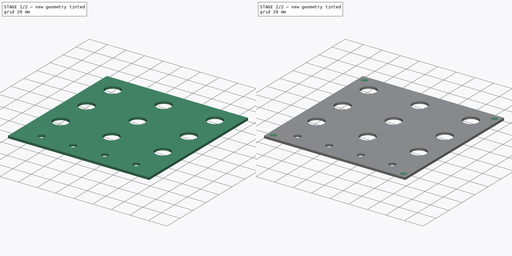
[diagram: build sequence overview — one tinted view per stage of 2, left to right]
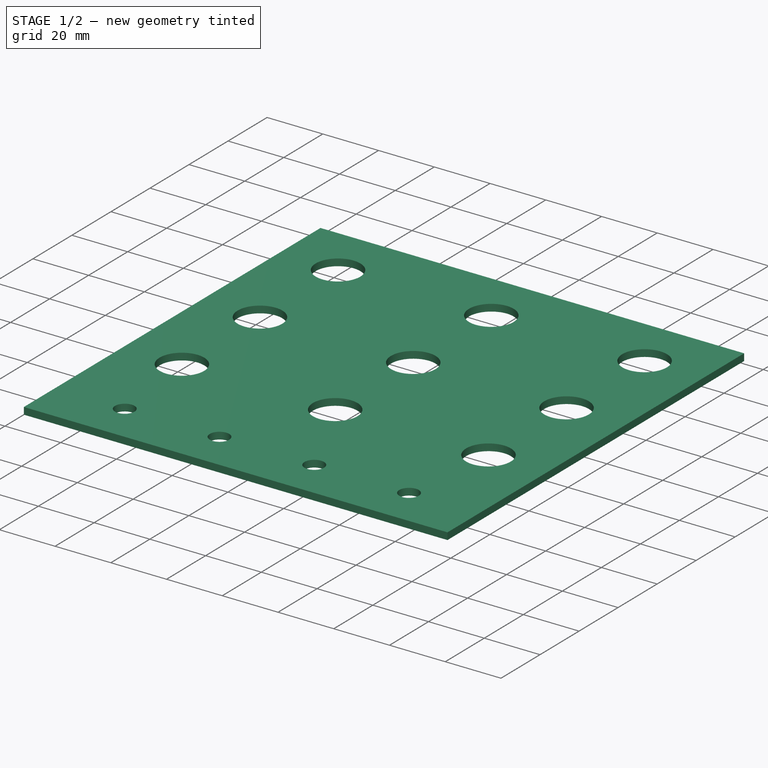
[diagram: stage 1 of 2 — iso view after this stage's code; geometry added in this stage tinted green]
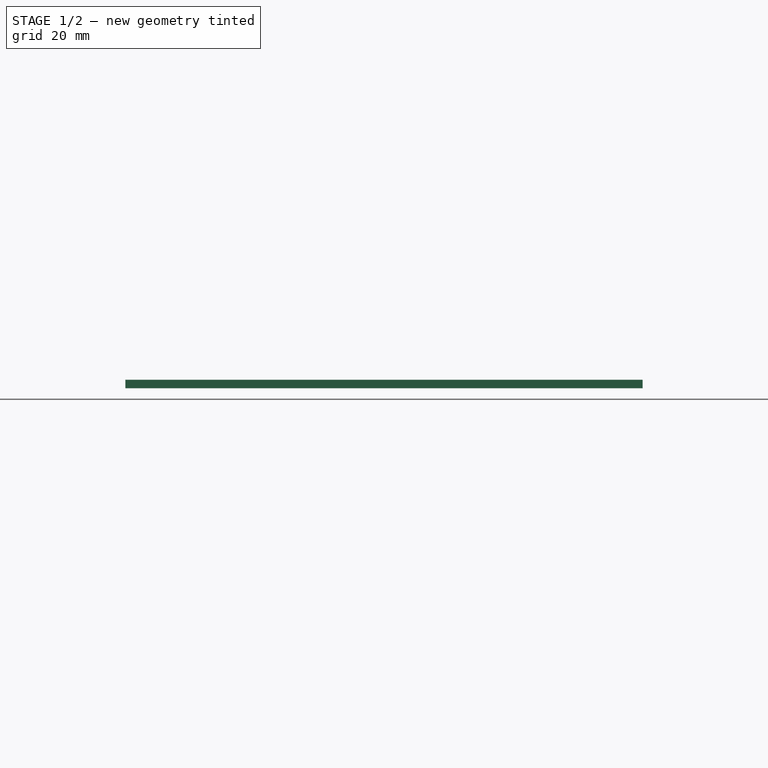
[diagram: stage 1 of 2 — front view after this stage's code; geometry added in this stage tinted green]
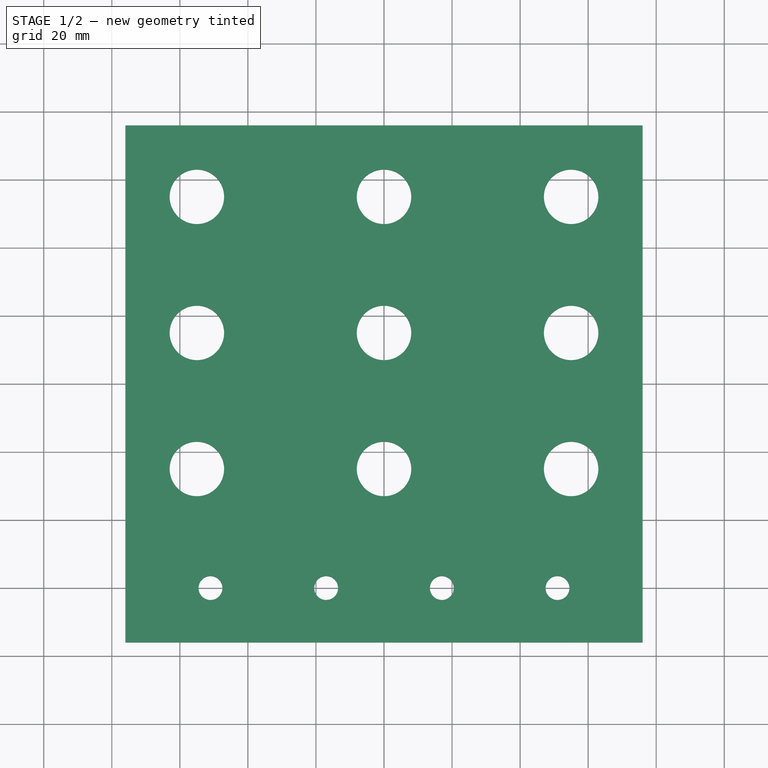
[diagram: stage 1 of 2 — top view after this stage's code; geometry added in this stage tinted green]
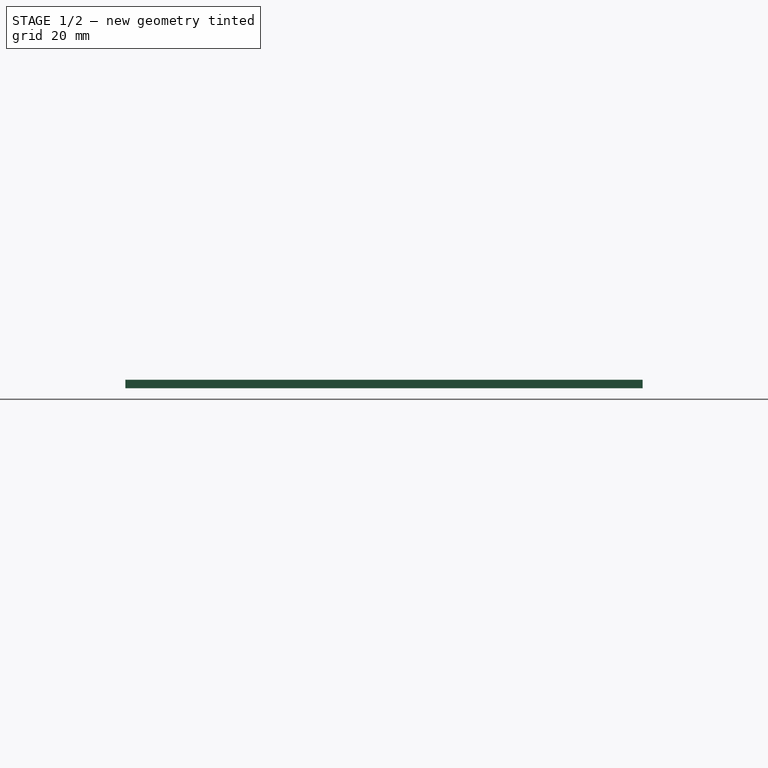
[diagram: stage 1 of 2 — right view after this stage's code; geometry added in this stage tinted green]
FCSTD DOCUMENT  (FreeCAD 0.16R6712 (Git))
Label: 9-button-4-dial-top
License: All rights reserved
LicenseURL: http://en.wikipedia.org/wiki/All_rights_reserved
objects: Sketcher::SketchObject×3, PartDesign::Pocket×2, PartDesign::Pad×1, PartDesign::Chamfer×1
note: 10 computed .brp shape members not serialized (recipe doc carries the construction recipe); baked Part::Feature solids carry a one-line shape summary decoded from their .brp

FEATURE [Sketcher::SketchObject] Sketch
  sketch-geometry (4):
    g0: LineSegment StartX=-76 StartY=76 StartZ=0 EndX=76 EndY=76 EndZ=0
    g1: LineSegment StartX=76 StartY=76 StartZ=0 EndX=76 EndY=-76 EndZ=0
    g2: LineSegment StartX=76 StartY=-76 StartZ=0 EndX=-76 EndY=-76 EndZ=0
    g3: LineSegment StartX=-76 StartY=-76 StartZ=0 EndX=-76 EndY=76 EndZ=0
  constraints (12):
    c: Coincident(g0,g1)
    c: Coincident(g1,g2)
    c: Coincident(g2,g3)
    c: Coincident(g3,g0)
    c: Horizontal(g0)
    c: Horizontal(g2)
    c: Vertical(g1)
    c: Vertical(g3)
    c: DistanceX(g0,g0) = 152
    c: DistanceY(g3,g3) = 152
    c: Symmetric(g0,g0,g-2)
    c: Symmetric(g0,g2,g-1)
FEATURE [PartDesign::Pad] Pad
  Length = 2.5
  Length2 = 100
  Sketch = -> Sketch
  Type = 0
FEATURE [Sketcher::SketchObject] Sketch001  label="control holes"
  Placement = pos=(0,0,2.5) rot=(0,0,1;0rad)
  Support = -> Pad [Face6]
  sketch-geometry (19):
    g0: Circle CenterX=-55 CenterY=55 CenterZ=0 NormalX=0 NormalY=0 NormalZ=1 Radius=8
    g1: Circle CenterX=-51 CenterY=-60 CenterZ=0 NormalX=0 NormalY=0 NormalZ=1 Radius=3.5
    g2: Circle CenterX=-55 CenterY=15 CenterZ=0 NormalX=0 NormalY=0 NormalZ=1 Radius=8
    g3: Circle CenterX=0 CenterY=15 CenterZ=0 NormalX=0 NormalY=0 NormalZ=1 Radius=8
    g4: Circle CenterX=0 CenterY=-25 CenterZ=0 NormalX=0 NormalY=0 NormalZ=1 Radius=8
    g5: Circle CenterX=0 CenterY=55 CenterZ=0 NormalX=0 NormalY=0 NormalZ=1 Radius=8
    g6: Circle CenterX=-17 CenterY=-60 CenterZ=0 NormalX=0 NormalY=0 NormalZ=1 Radius=3.5
    g7: Circle CenterX=17 CenterY=-60 CenterZ=0 NormalX=0 NormalY=0 NormalZ=1 Radius=3.5
    g8: Circle CenterX=51 CenterY=-60 CenterZ=0 NormalX=0 NormalY=0 NormalZ=1 Radius=3.5
    g9: LineSegment [constr] StartX=-17 StartY=-60 StartZ=0 EndX=17 EndY=-60 EndZ=0
    g10: LineSegment [constr] StartX=-51 StartY=-60 StartZ=0 EndX=-17 EndY=-60 EndZ=0
    g11: LineSegment [constr] StartX=17 StartY=-60 StartZ=0 EndX=51 EndY=-60 EndZ=0
    g12: Circle CenterX=55 CenterY=55 CenterZ=0 NormalX=0 NormalY=0 NormalZ=1 Radius=8
    g13: Circle CenterX=-55 CenterY=-25 CenterZ=0 NormalX=0 NormalY=0 NormalZ=1 Radius=8
    g14: Circle CenterX=55 CenterY=-25 CenterZ=0 NormalX=0 NormalY=0 NormalZ=1 Radius=8
    g15: LineSegment [constr] StartX=-76 StartY=15 StartZ=0 EndX=76 EndY=15 EndZ=0
    g16: LineSegment [constr] StartX=-76 StartY=-25 StartZ=0 EndX=76 EndY=-25 EndZ=0
    g17: LineSegment [constr] StartX=-76 StartY=55 StartZ=0 EndX=76 EndY=55 EndZ=0
    g18: Circle CenterX=55 CenterY=15 CenterZ=0 NormalX=0 NormalY=0 NormalZ=1 Radius=8
  constraints (53):
    c: Radius(g0) = 8
    c: Radius(g1) = 3.5
    c: Equal(g2,g0)
    c: Equal(g0,g3)
    c: Equal(g3,g4)
    c: Equal(g4,g5)
    c: Equal(g1,g6)
    c: Equal(g6,g7)
    c: Equal(g7,g8)
    c: Horizontal(g9)
    c: DistanceX(g9,g9) = 34
    c: Symmetric(g9,g9,g-2)
    c: DistanceY(g9,g-1) = 60
    c: Coincident(g6,g9)
    c: Coincident(g7,g9)
    c: Horizontal(g10)
    c: Equal(g9,g10)
    c: Horizontal(g11)
    c: Equal(g11,g10)
    c: Coincident(g11,g7)
    c: Coincident(g10,g6)
    c: Coincident(g8,g11)
    c: Coincident(g1,g10)
    c: PointOnObject(g5,g-2)
    c: PointOnObject(g3,g-2)
    c: PointOnObject(g4,g-2)
    c: Equal(g13,g14)
    c: Equal(g14,g0)
    c: Symmetric(g15,g15,g-2)
    c: Symmetric(g16,g16,g-2)
    c: PointOnObject(g13,g16)
    c: PointOnObject(g4,g16)
    c: PointOnObject(g14,g16)
    c: Symmetric(g17,g17,g-2)
    c: PointOnObject(g0,g17)
    c: PointOnObject(g5,g17)
    c: PointOnObject(g12,g17)
    c: DistanceX(g17,g17) = 152
    c: Equal(g16,g15)
    c: Equal(g15,g17)
    c: PointOnObject(g3,g15)
    c: PointOnObject(g2,g15)
    c: Symmetric(g0,g12,g-2)
    c: DistanceX(g0,g5) = 55
    c: Symmetric(g13,g14,g-2)
    c: DistanceX(g2,g3) = 55
    c: DistanceX(g13,g4) = 55
    c: Equal(g18,g0)
    c: Symmetric(g18,g2,g-2)
    c: DistanceY(g16,g15) = 40
    c: DistanceY(g15,g17) = 40
    c: DistanceY(g-1,g3) = 15
    c: Equal(g12,g0)
FEATURE [PartDesign::Pocket] Pocket
  Length = 5
  Sketch = -> Sketch001
  Type = 0
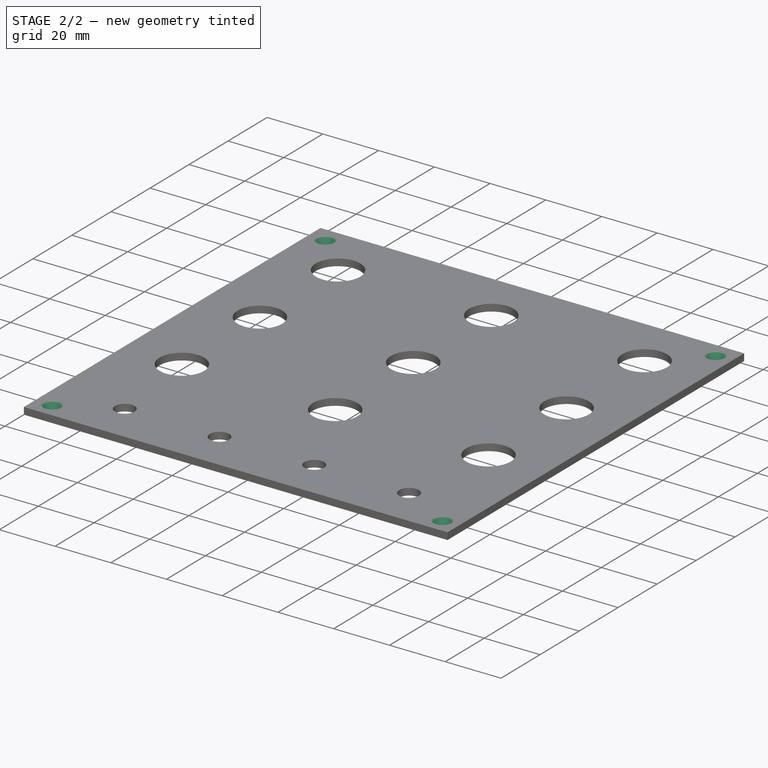
[diagram: stage 2 of 2 — iso view after this stage's code; geometry added in this stage tinted green]
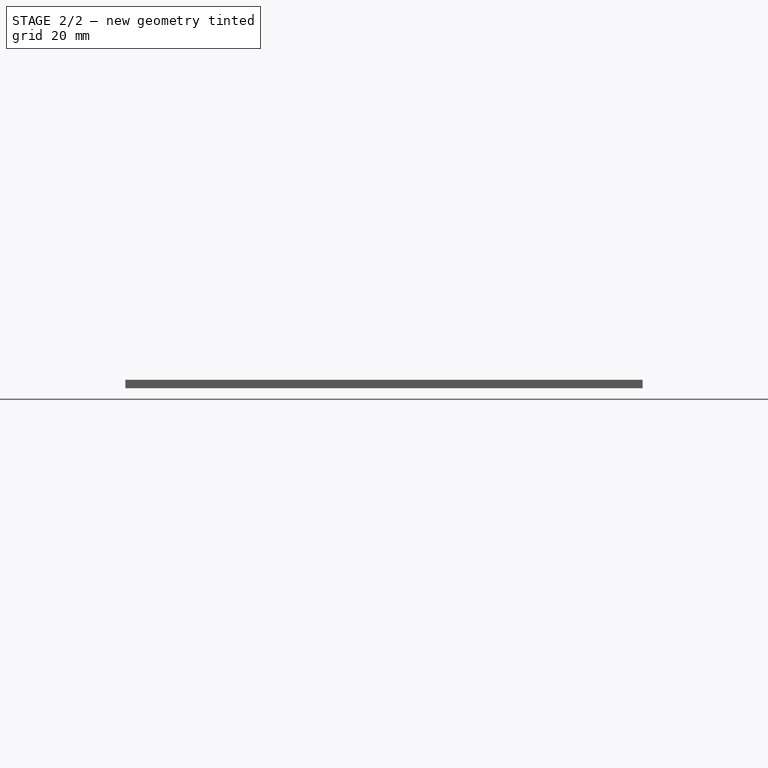
[diagram: stage 2 of 2 — front view after this stage's code; geometry added in this stage tinted green]
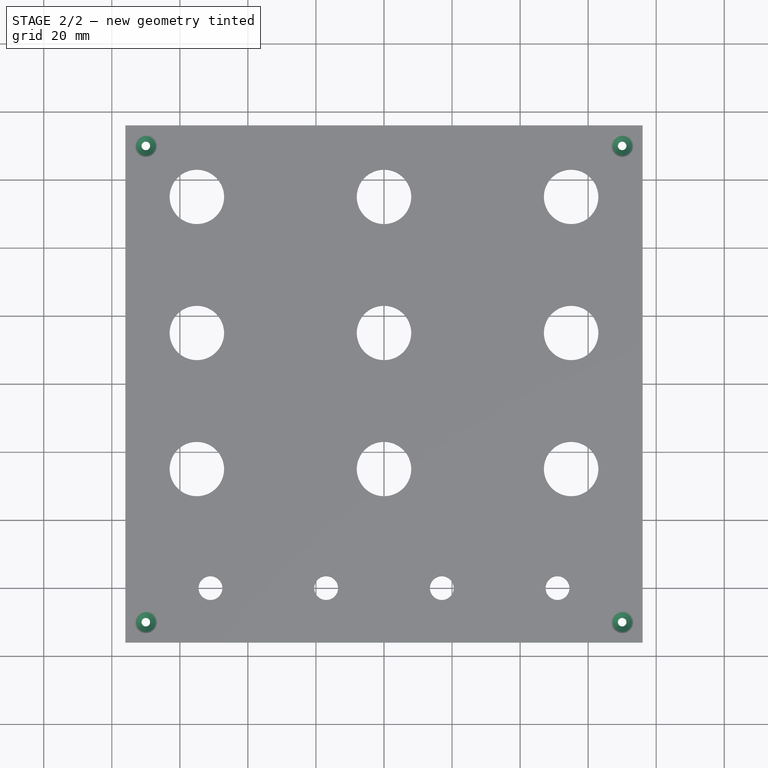
[diagram: stage 2 of 2 — top view after this stage's code; geometry added in this stage tinted green]
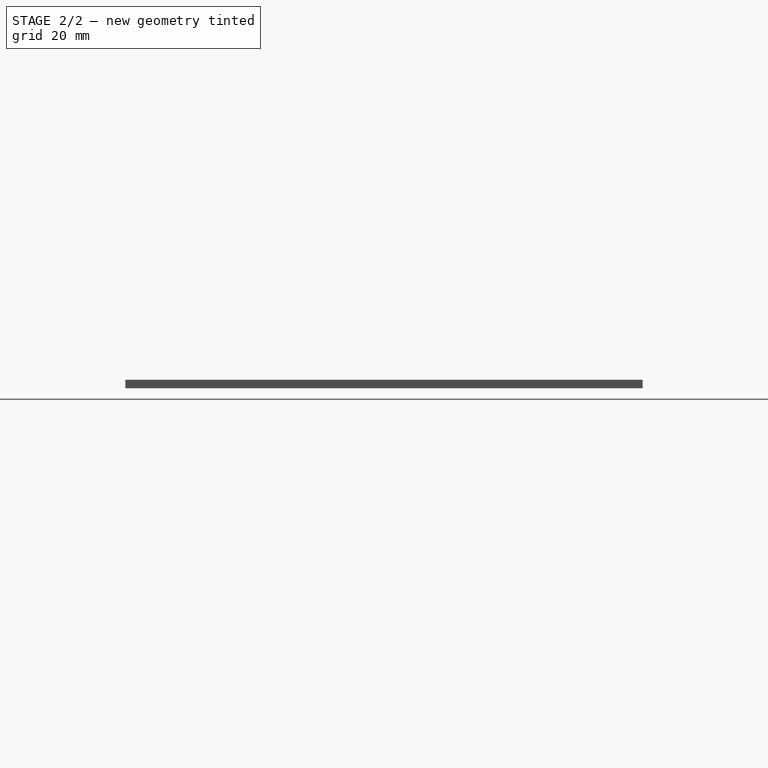
[diagram: stage 2 of 2 — right view after this stage's code; geometry added in this stage tinted green]
FEATURE [Sketcher::SketchObject] Sketch002  label="screw holes"
  Placement = pos=(0,0,2.5) rot=(0,0,1;0rad)
  Support = -> Pocket [Face5]
  sketch-geometry (4):
    g0: Circle CenterX=-70 CenterY=70 CenterZ=0 NormalX=0 NormalY=0 NormalZ=1 Radius=1.25
    g1: Circle CenterX=70 CenterY=70 CenterZ=0 NormalX=0 NormalY=0 NormalZ=1 Radius=1.25
    g2: Circle CenterX=70 CenterY=-70 CenterZ=0 NormalX=0 NormalY=0 NormalZ=1 Radius=1.25
    g3: Circle CenterX=-70 CenterY=-70 CenterZ=0 NormalX=0 NormalY=0 NormalZ=1 Radius=1.25
  constraints (9):
    c: Equal(g0,g1)
    c: Equal(g1,g2)
    c: Equal(g2,g3)
    c: Symmetric(g0,g1,g-2)
    c: Symmetric(g0,g3,g-1)
    c: Symmetric(g2,g1,g-1)
    c: Radius(g0) = 1.25
    c: DistanceX(g0,g-1) = 70
    c: DistanceY(g-1,g0) = 70
FEATURE [PartDesign::Pocket] Pocket001
  Length = 5
  Sketch = -> Sketch002
  Type = 0
FEATURE [PartDesign::Chamfer] Chamfer
  Base = -> Pocket001 [Edge45,Edge46,Edge43,Edge44]
  Size = 2
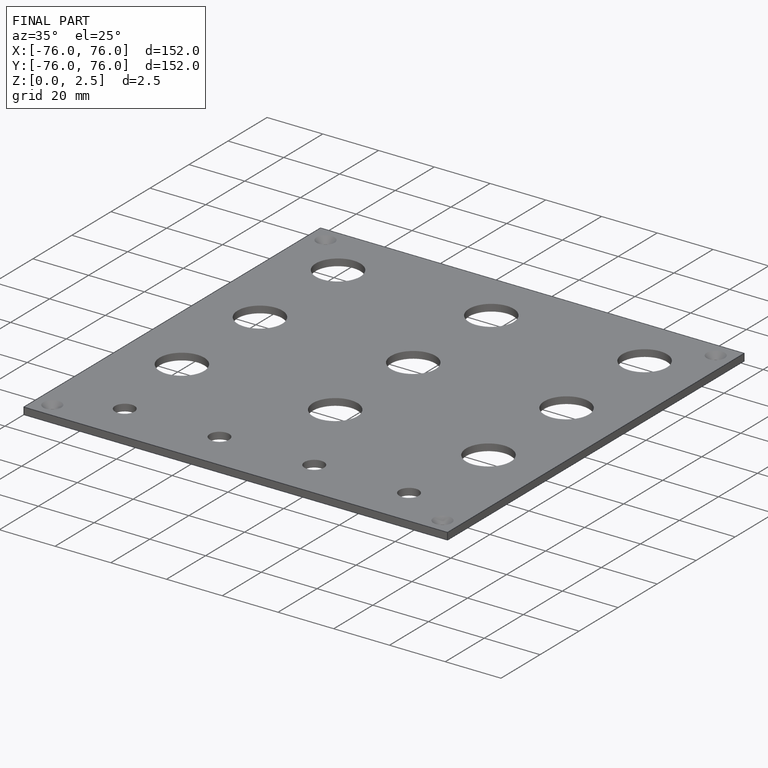
[diagram: finished part — iso view with bounding-box wireframe]
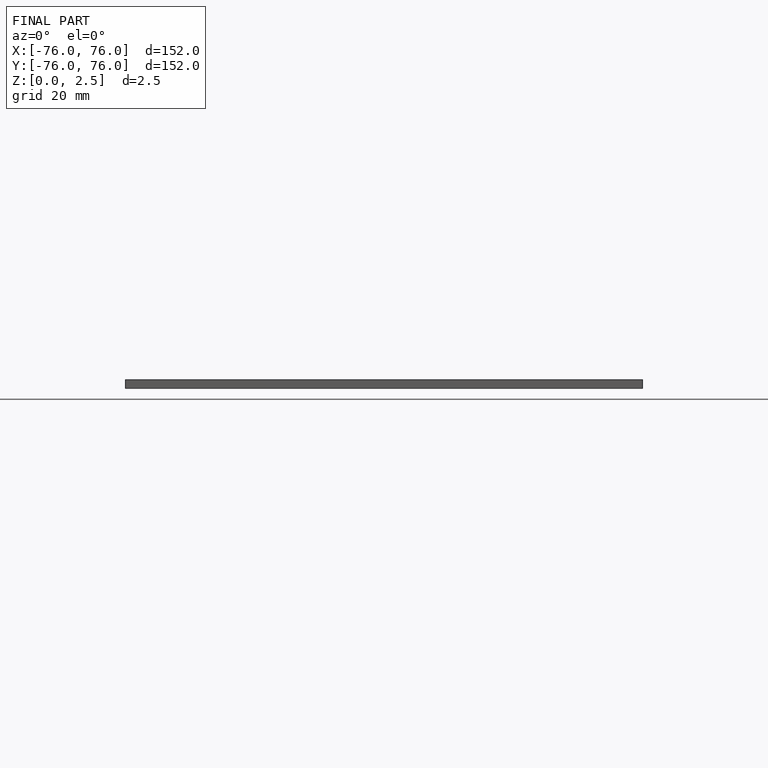
[diagram: finished part — front view with bounding-box wireframe]
